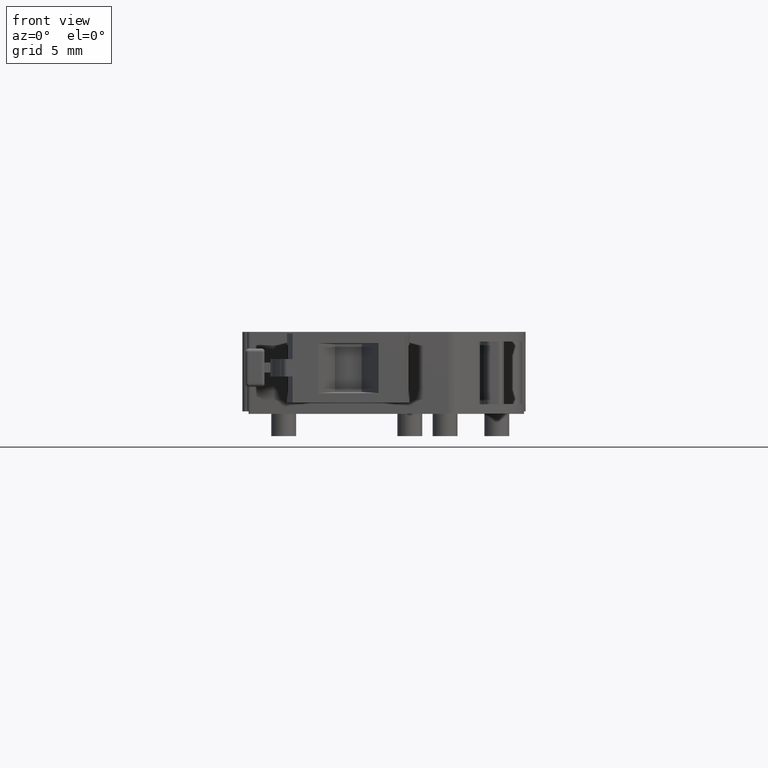
[diagram: clean part render]
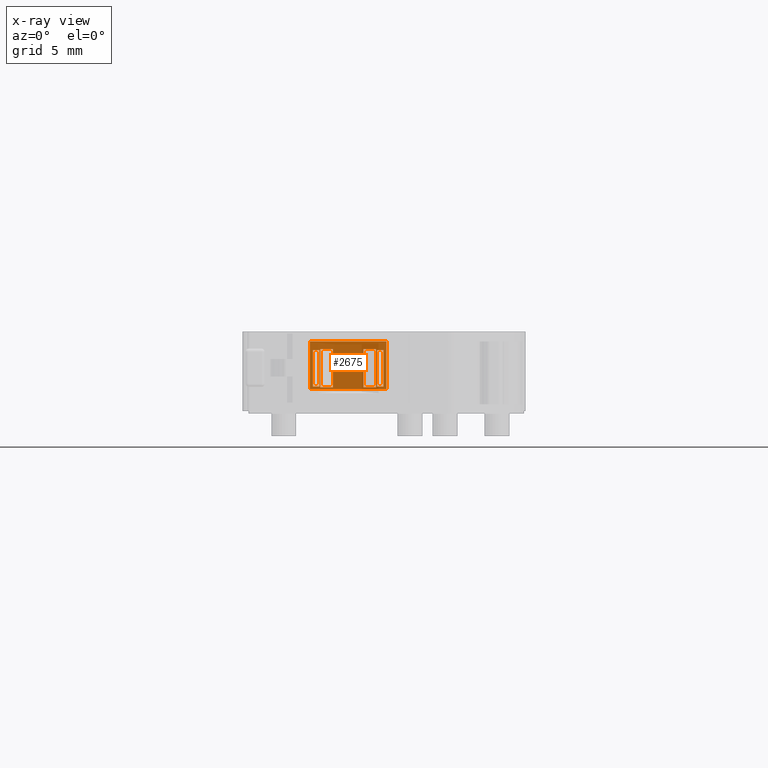
[diagram: x-ray — body ghosted, one internal face saturated and labeled with its STEP entity id]
A machine part, front view, then the same camera in x-ray: the body is ghosted and one INTERNAL B-rep face — a face not visible from any outside direction — is saturated and labeled: STEP entity #2675.
In plain terms, the highlighted planar face has unit normal (-0, 1, 0).
Its self-contained STEP definition (entity closure, byte-faithful):
#69 = DIRECTION ( 'NONE',  ( -1.097738957703008200E-016, -5.753006100569473500E-018, -1.000000000000000000 ) ) ;
#96 = ORIENTED_EDGE ( 'NONE', *, *, #8171, .T. ) ;
#122 = CARTESIAN_POINT ( 'NONE',  ( -21.41940294083580600, 7.789620547339087200, 1.615851566870956100 ) ) ;
#125 = CARTESIAN_POINT ( 'NONE',  ( -23.04598760276555000, 7.789620547339063200, 1.065851566871427900 ) ) ;
#140 = DIRECTION ( 'NONE',  ( -1.000000000000000000, 0.0000000000000000000, -3.374303920957221700E-015 ) ) ;
#145 = LINE ( 'NONE', #5436, #3867 ) ;
#220 = VECTOR ( 'NONE', #5001, 1000.000000000000000 ) ;
#387 = CARTESIAN_POINT ( 'NONE',  ( -16.79862599377404600, 7.789620547339134200, -1.944148433129062400 ) ) ;
#420 = VERTEX_POINT ( 'NONE', #2909 ) ;
#689 = LINE ( 'NONE', #2947, #1581 ) ;
#722 = VECTOR ( 'NONE', #7268, 1000.000000000000000 ) ;
#736 = VECTOR ( 'NONE', #7732, 1000.000000000000000 ) ;
#899 = LINE ( 'NONE', #7045, #220 ) ;
#973 = VECTOR ( 'NONE', #5869, 1000.000000000000000 ) ;
#976 = DIRECTION ( 'NONE',  ( 1.000000000000000000, 0.0000000000000000000, 6.975453735069582600E-015 ) ) ;
#1020 = FACE_BOUND ( 'NONE', #4466, .T. ) ;
#1057 = CARTESIAN_POINT ( 'NONE',  ( -15.49376965632404300, 7.789620547339104900, 1.555851566870937400 ) ) ;
#1187 = DIRECTION ( 'NONE',  ( -1.000000000000000000, 0.0000000000000000000, -0.0000000000000000000 ) ) ;
#1196 = LINE ( 'NONE', #2401, #6292 ) ;
#1211 = EDGE_CURVE ( 'NONE', #7313, #4779, #5429, .T. ) ;
#1296 = EDGE_CURVE ( 'NONE', #5015, #7313, #1196, .T. ) ;
#1352 = VERTEX_POINT ( 'NONE', #6778 ) ;
#1404 = CARTESIAN_POINT ( 'NONE',  ( -17.37853571409769100, 7.789620547339144900, -1.284148433129039100 ) ) ;
#1438 = ORIENTED_EDGE ( 'NONE', *, *, #1908, .T. ) ;
#1471 = FACE_BOUND ( 'NONE', #4105, .T. ) ;
#1581 = VECTOR ( 'NONE', #140, 1000.000000000000000 ) ;
#1625 = LINE ( 'NONE', #7894, #4868 ) ;
#1721 = ORIENTED_EDGE ( 'NONE', *, *, #6183, .T. ) ;
#1737 = ORIENTED_EDGE ( 'NONE', *, *, #1296, .T. ) ;
#1756 = CARTESIAN_POINT ( 'NONE',  ( -16.79862599377404600, 7.789620547339132500, 1.555851566870937000 ) ) ;
#1822 = EDGE_CURVE ( 'NONE', #4779, #5576, #6914, .T. ) ;
#1902 = VERTEX_POINT ( 'NONE', #3736 ) ;
#1908 = EDGE_CURVE ( 'NONE', #7316, #4659, #1625, .T. ) ;
#1913 = VECTOR ( 'NONE', #2818, 1000.000000000000000 ) ;
#1953 = VECTOR ( 'NONE', #976, 1000.000000000000000 ) ;
#2031 = CARTESIAN_POINT ( 'NONE',  ( -21.59876372279976300, 7.789620547339119100, -1.444148433129062200 ) ) ;
#2401 = CARTESIAN_POINT ( 'NONE',  ( -21.59876372279976300, 7.789620547339099600, -1.944148433129062400 ) ) ;
#2517 = EDGE_LOOP ( 'NONE', ( #1438, #2872, #4233, #4599 ) ) ;
#2669 = CARTESIAN_POINT ( 'NONE',  ( -23.04598760276555000, 7.789620547339063200, 18.98884224231227300 ) ) ;
#2675 = ADVANCED_FACE ( 'NONE', ( #1471, #4715, #5582, #6764, #1020 ), #7497, .T. ) ;
#2810 = VERTEX_POINT ( 'NONE', #1404 ) ;
#2818 = DIRECTION ( 'NONE',  ( 1.000000000000000000, -1.177899796547834300E-033, 9.075614445397059900E-018 ) ) ;
#2872 = ORIENTED_EDGE ( 'NONE', *, *, #7986, .F. ) ;
#2909 = CARTESIAN_POINT ( 'NONE',  ( -20.95727076792699600, 7.789620547339097800, 1.065851566871459200 ) ) ;
#2910 = ORIENTED_EDGE ( 'NONE', *, *, #7125, .T. ) ;
#2947 = CARTESIAN_POINT ( 'NONE',  ( -17.44643479725780800, 7.789620547339152000, 1.015851566870963100 ) ) ;
#2981 = VERTEX_POINT ( 'NONE', #7916 ) ;
#3087 = ORIENTED_EDGE ( 'NONE', *, *, #1822, .T. ) ;
#3134 = CARTESIAN_POINT ( 'NONE',  ( -20.95095559315246100, 7.789620547339093400, 1.015851566870950700 ) ) ;
#3200 = ORIENTED_EDGE ( 'NONE', *, *, #6297, .T. ) ;
#3203 = LINE ( 'NONE', #6514, #4913 ) ;
#3227 = DIRECTION ( 'NONE',  ( 0.0000000000000000000, 0.0000000000000000000, 1.000000000000000000 ) ) ;
#3340 = EDGE_CURVE ( 'NONE', #4513, #8071, #8084, .T. ) ;
#3376 = EDGE_CURVE ( 'NONE', #2810, #6898, #3793, .T. ) ;
#3437 = VECTOR ( 'NONE', #8638, 1000.000000000000000 ) ;
#3508 = VERTEX_POINT ( 'NONE', #7940 ) ;
#3592 = ORIENTED_EDGE ( 'NONE', *, *, #4020, .T. ) ;
#3616 = ORIENTED_EDGE ( 'NONE', *, *, #1211, .T. ) ;
#3736 = CARTESIAN_POINT ( 'NONE',  ( -16.97798677569852900, 7.789620547339151100, 1.015851566870964700 ) ) ;
#3747 = CARTESIAN_POINT ( 'NONE',  ( -16.68756343173510000, 7.789620547339144900, -1.284148433129033400 ) ) ;
#3793 = LINE ( 'NONE', #3747, #1953 ) ;
#3852 = ORIENTED_EDGE ( 'NONE', *, *, #6908, .T. ) ;
#3867 = VECTOR ( 'NONE', #1187, 1000.000000000000000 ) ;
#3891 = AXIS2_PLACEMENT_3D ( 'NONE', #2669, #4095, #6094 ) ;
#3893 = CARTESIAN_POINT ( 'NONE',  ( -21.55281908994630800, 7.789620547339086300, -1.284148433129050900 ) ) ;
#3937 = CARTESIAN_POINT ( 'NONE',  ( -21.01885400243663700, 7.789620547339091600, -1.284148433129051400 ) ) ;
#3943 = VECTOR ( 'NONE', #7275, 1000.000000000000000 ) ;
#4020 = EDGE_CURVE ( 'NONE', #2981, #5174, #8076, .T. ) ;
#4064 = VERTEX_POINT ( 'NONE', #5670 ) ;
#4095 = DIRECTION ( 'NONE',  ( -1.441848083928723800E-014, 1.000000000000000000, 0.0000000000000000000 ) ) ;
#4105 = EDGE_LOOP ( 'NONE', ( #96, #2910, #8178, #4484 ) ) ;
#4115 = VECTOR ( 'NONE', #5238, 1000.000000000000000 ) ;
#4122 = CARTESIAN_POINT ( 'NONE',  ( -27.58688734793299300, 7.789620547339132500, -1.334148433128572900 ) ) ;
#4151 = DIRECTION ( 'NONE',  ( -1.000000000000000000, -1.736697241702721000E-032, -2.245945421566701300E-017 ) ) ;
#4158 = ORIENTED_EDGE ( 'NONE', *, *, #5779, .T. ) ;
#4161 = LINE ( 'NONE', #4723, #6541 ) ;
#4233 = ORIENTED_EDGE ( 'NONE', *, *, #4603, .T. ) ;
#4246 = CARTESIAN_POINT ( 'NONE',  ( -20.15531724946206200, 7.789620547339101400, -1.334148433128540000 ) ) ;
#4403 = ORIENTED_EDGE ( 'NONE', *, *, #7310, .F. ) ;
#4410 = CARTESIAN_POINT ( 'NONE',  ( -17.44011894860738100, 7.789620547339144000, 1.065851566871427500 ) ) ;
#4429 = DIRECTION ( 'NONE',  ( -6.831315666397541200E-015, 3.580140836573466400E-016, 1.000000000000000000 ) ) ;
#4466 = EDGE_LOOP ( 'NONE', ( #5929, #3592, #1721, #4403 ) ) ;
#4484 = ORIENTED_EDGE ( 'NONE', *, *, #3376, .T. ) ;
#4513 = VERTEX_POINT ( 'NONE', #6246 ) ;
#4582 = CARTESIAN_POINT ( 'NONE',  ( -16.97798677569854000, 7.789620547339149300, 1.615851566870973600 ) ) ;
#4599 = ORIENTED_EDGE ( 'NONE', *, *, #5203, .T. ) ;
#4603 = EDGE_CURVE ( 'NONE', #3508, #420, #7401, .T. ) ;
#4659 = VERTEX_POINT ( 'NONE', #4246 ) ;
#4715 = FACE_OUTER_BOUND ( 'NONE', #7388, .T. ) ;
#4723 = CARTESIAN_POINT ( 'NONE',  ( -17.44011894860739200, 7.789620547339143100, -2.394148433128650200 ) ) ;
#4779 = VERTEX_POINT ( 'NONE', #1756 ) ;
#4807 = DIRECTION ( 'NONE',  ( 7.638417571533031100E-016, -5.341301890705437400E-017, 1.000000000000000000 ) ) ;
#4833 = LINE ( 'NONE', #4122, #1913 ) ;
#4844 = VECTOR ( 'NONE', #4151, 1000.000000000000000 ) ;
#4868 = VECTOR ( 'NONE', #5124, 1000.000000000000000 ) ;
#4913 = VECTOR ( 'NONE', #5822, 1000.000000000000000 ) ;
#5001 = DIRECTION ( 'NONE',  ( -1.097738957703008200E-016, -5.753006100569473500E-018, -1.000000000000000000 ) ) ;
#5015 = VERTEX_POINT ( 'NONE', #2031 ) ;
#5081 = DIRECTION ( 'NONE',  ( -4.718737622811981500E-017, -3.299662783611086700E-018, -1.000000000000000000 ) ) ;
#5124 = DIRECTION ( 'NONE',  ( 1.000000000000000000, 1.736697241702721000E-032, 2.245945421566701300E-017 ) ) ;
#5174 = VERTEX_POINT ( 'NONE', #7545 ) ;
#5188 = VECTOR ( 'NONE', #69, 1000.000000000000000 ) ;
#5195 = VECTOR ( 'NONE', #5081, 1000.000000000000000 ) ;
#5203 = EDGE_CURVE ( 'NONE', #420, #7316, #8184, .T. ) ;
#5238 = DIRECTION ( 'NONE',  ( 0.0000000000000000000, 0.0000000000000000000, -1.000000000000000000 ) ) ;
#5273 = LINE ( 'NONE', #3134, #3437 ) ;
#5339 = VERTEX_POINT ( 'NONE', #4410 ) ;
#5429 = LINE ( 'NONE', #1057, #973 ) ;
#5436 = CARTESIAN_POINT ( 'NONE',  ( -19.19954919249998000, 7.789620547339145800, -1.444148433129062200 ) ) ;
#5576 = VERTEX_POINT ( 'NONE', #8158 ) ;
#5582 = FACE_BOUND ( 'NONE', #2517, .T. ) ;
#5670 = CARTESIAN_POINT ( 'NONE',  ( -21.01885400243663700, 7.789620547339093400, 1.015851566870950700 ) ) ;
#5693 = CARTESIAN_POINT ( 'NONE',  ( -21.59876372279976300, 7.789620547339093400, 1.555851566870936500 ) ) ;
#5779 = EDGE_CURVE ( 'NONE', #5339, #8071, #6692, .T. ) ;
#5822 = DIRECTION ( 'NONE',  ( -4.718737622811981500E-017, -3.299662783611086700E-018, -1.000000000000000000 ) ) ;
#5869 = DIRECTION ( 'NONE',  ( 1.000000000000000000, 0.0000000000000000000, -0.0000000000000000000 ) ) ;
#5929 = ORIENTED_EDGE ( 'NONE', *, *, #6658, .T. ) ;
#6094 = DIRECTION ( 'NONE',  ( -1.000000000000000000, -1.441848083928723800E-014, 0.0000000000000000000 ) ) ;
#6183 = EDGE_CURVE ( 'NONE', #5174, #6779, #8388, .T. ) ;
#6246 = CARTESIAN_POINT ( 'NONE',  ( -18.24207246707232200, 7.789620547339131600, -1.334148433128573600 ) ) ;
#6292 = VECTOR ( 'NONE', #3227, 1000.000000000000000 ) ;
#6297 = EDGE_CURVE ( 'NONE', #5576, #5015, #145, .T. ) ;
#6300 = CARTESIAN_POINT ( 'NONE',  ( -27.17055279286247000, 7.789620547339104900, 1.065851566871459400 ) ) ;
#6396 = CARTESIAN_POINT ( 'NONE',  ( -20.95727076792699600, 7.789620547339096000, -1.334148433128540000 ) ) ;
#6462 = CARTESIAN_POINT ( 'NONE',  ( -20.95727076792699600, 7.789620547339096900, -2.394148433128591600 ) ) ;
#6514 = CARTESIAN_POINT ( 'NONE',  ( -20.15531724946206200, 7.789620547339104000, -2.394148433128591600 ) ) ;
#6533 = VECTOR ( 'NONE', #4429, 1000.000000000000000 ) ;
#6541 = VECTOR ( 'NONE', #4807, 1000.000000000000000 ) ;
#6646 = LINE ( 'NONE', #4582, #3943 ) ;
#6658 = EDGE_CURVE ( 'NONE', #4064, #2981, #5273, .T. ) ;
#6692 = LINE ( 'NONE', #125, #722 ) ;
#6764 = FACE_BOUND ( 'NONE', #7327, .T. ) ;
#6778 = CARTESIAN_POINT ( 'NONE',  ( -17.37853571409770100, 7.789620547339146700, 1.015851566870964200 ) ) ;
#6779 = VERTEX_POINT ( 'NONE', #3937 ) ;
#6787 = VECTOR ( 'NONE', #8645, 1000.000000000000000 ) ;
#6898 = VERTEX_POINT ( 'NONE', #8227 ) ;
#6908 = EDGE_CURVE ( 'NONE', #4513, #7786, #4833, .T. ) ;
#6914 = LINE ( 'NONE', #387, #4115 ) ;
#7045 = CARTESIAN_POINT ( 'NONE',  ( -21.01885400243663700, 7.789620547339093400, 1.615851566870956100 ) ) ;
#7058 = CARTESIAN_POINT ( 'NONE',  ( -18.24207246707232600, 7.789620547339131600, -2.394148433128649300 ) ) ;
#7125 = EDGE_CURVE ( 'NONE', #1902, #1352, #689, .T. ) ;
#7138 = CARTESIAN_POINT ( 'NONE',  ( -18.24207246707232200, 7.789620547339135100, 1.065851566871427500 ) ) ;
#7167 = LINE ( 'NONE', #7895, #6533 ) ;
#7268 = DIRECTION ( 'NONE',  ( -1.000000000000000000, -1.441848083928723800E-014, 0.0000000000000000000 ) ) ;
#7275 = DIRECTION ( 'NONE',  ( -6.831315666397541200E-015, 3.580140836573466400E-016, 1.000000000000000000 ) ) ;
#7310 = EDGE_CURVE ( 'NONE', #4064, #6779, #899, .T. ) ;
#7313 = VERTEX_POINT ( 'NONE', #5693 ) ;
#7316 = VERTEX_POINT ( 'NONE', #6396 ) ;
#7327 = EDGE_LOOP ( 'NONE', ( #4158, #7943, #3852, #8045 ) ) ;
#7343 = CARTESIAN_POINT ( 'NONE',  ( -17.44011894860738500, 7.789620547339140400, -1.334148433128573600 ) ) ;
#7388 = EDGE_LOOP ( 'NONE', ( #3616, #3087, #3200, #1737 ) ) ;
#7399 = EDGE_CURVE ( 'NONE', #7786, #5339, #4161, .T. ) ;
#7401 = LINE ( 'NONE', #6300, #4844 ) ;
#7497 = PLANE ( 'NONE',  #3891 ) ;
#7545 = CARTESIAN_POINT ( 'NONE',  ( -21.41940294083580900, 7.789620547339086300, -1.284148433129051400 ) ) ;
#7732 = DIRECTION ( 'NONE',  ( 7.638417571533031100E-016, -5.341301890705437400E-017, 1.000000000000000000 ) ) ;
#7786 = VERTEX_POINT ( 'NONE', #7343 ) ;
#7894 = CARTESIAN_POINT ( 'NONE',  ( -27.17055279286247000, 7.789620547339095100, -1.334148433128540000 ) ) ;
#7895 = CARTESIAN_POINT ( 'NONE',  ( -17.37853571409770500, 7.789620547339144900, 1.615851566870971000 ) ) ;
#7916 = CARTESIAN_POINT ( 'NONE',  ( -21.41940294083580900, 7.789620547339088000, 1.015851566870950000 ) ) ;
#7940 = CARTESIAN_POINT ( 'NONE',  ( -20.15531724946206200, 7.789620547339104900, 1.065851566871459400 ) ) ;
#7943 = ORIENTED_EDGE ( 'NONE', *, *, #3340, .F. ) ;
#7986 = EDGE_CURVE ( 'NONE', #3508, #4659, #3203, .T. ) ;
#8045 = ORIENTED_EDGE ( 'NONE', *, *, #7399, .T. ) ;
#8071 = VERTEX_POINT ( 'NONE', #7138 ) ;
#8076 = LINE ( 'NONE', #122, #5188 ) ;
#8084 = LINE ( 'NONE', #7058, #736 ) ;
#8158 = CARTESIAN_POINT ( 'NONE',  ( -16.79862599377404600, 7.789620547339146700, -1.444148433129062600 ) ) ;
#8171 = EDGE_CURVE ( 'NONE', #6898, #1902, #6646, .T. ) ;
#8178 = ORIENTED_EDGE ( 'NONE', *, *, #8600, .F. ) ;
#8184 = LINE ( 'NONE', #6462, #5195 ) ;
#8227 = CARTESIAN_POINT ( 'NONE',  ( -16.97798677569851800, 7.789620547339149300, -1.284148433129037400 ) ) ;
#8388 = LINE ( 'NONE', #3893, #6787 ) ;
#8600 = EDGE_CURVE ( 'NONE', #2810, #1352, #7167, .T. ) ;
#8638 = DIRECTION ( 'NONE',  ( -1.000000000000000000, 0.0000000000000000000, -3.366318420958344200E-015 ) ) ;
#8645 = DIRECTION ( 'NONE',  ( 1.000000000000000000, -1.972350512981082300E-033, -1.027640645500026600E-017 ) ) ;